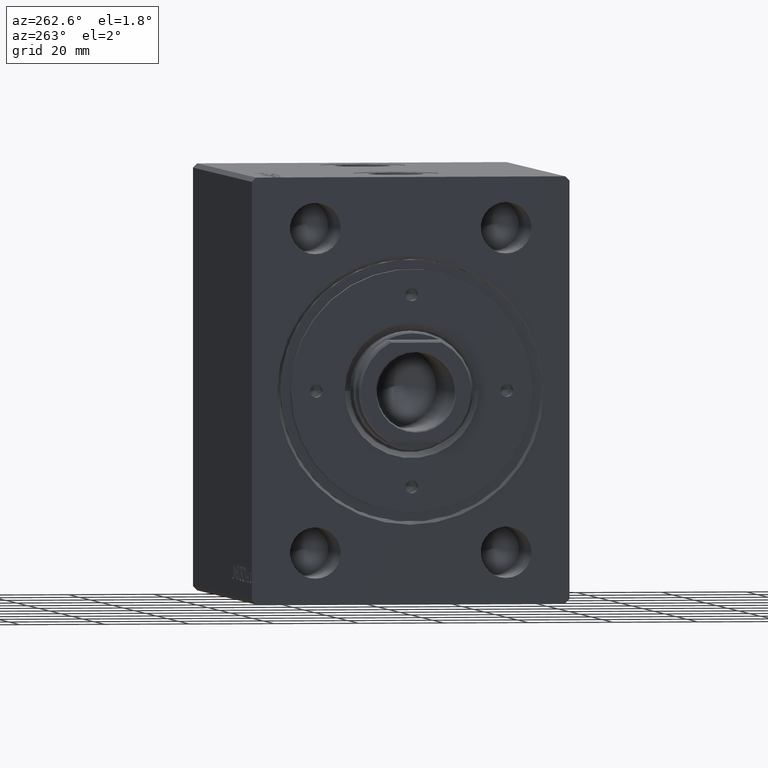
[diagram: clean part render]
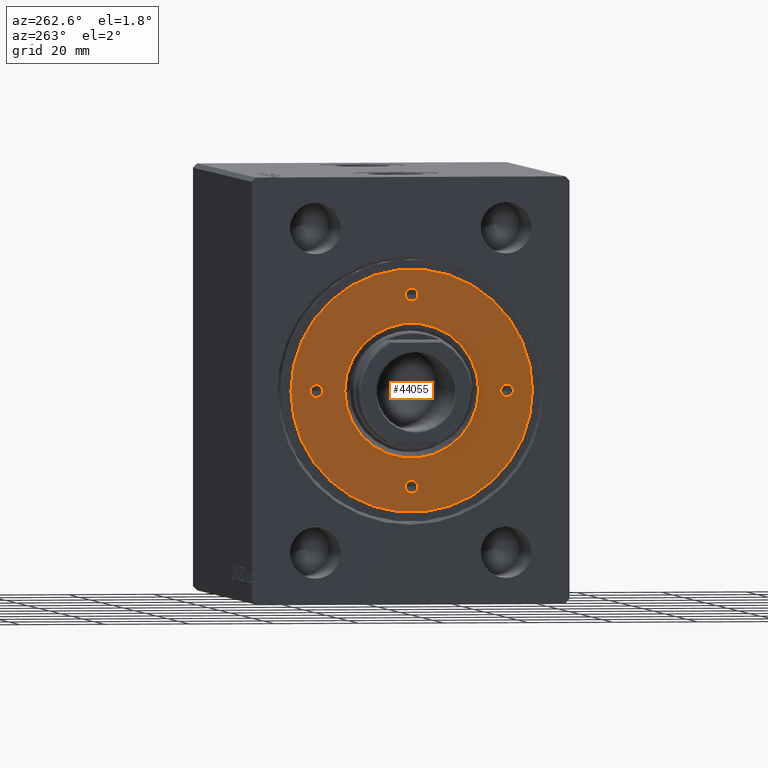
[diagram: same view with one face highlighted and labeled with its STEP entity id]
A machine part, auxiliary view. The second image highlights one B-rep face of the part: STEP entity #44055.
In plain terms, the highlighted planar face has unit normal (-1, 0, 0).
Its self-contained STEP definition (entity closure, byte-faithful):
#555 = EDGE_CURVE ( 'NONE', #11235, #14431, #16003, .T. ) ;
#647 = CARTESIAN_POINT ( 'NONE',  ( 23.99999999999999645, 0.000000000000000000, 83.79999999999999716 ) ) ;
#808 = EDGE_CURVE ( 'NONE', #16384, #5450, #28067, .T. ) ;
#857 = CARTESIAN_POINT ( 'NONE',  ( 0.000000000000000000, 22.50000000000000000, 83.79999999999999716 ) ) ;
#1093 = EDGE_CURVE ( 'NONE', #17696, #11221, #14573, .T. ) ;
#1209 = EDGE_CURVE ( 'NONE', #3067, #16761, #31643, .T. ) ;
#1656 = CARTESIAN_POINT ( 'NONE',  ( 0.000000000000000000, 0.000000000000000000, 83.79999999999999716 ) ) ;
#1737 = DIRECTION ( 'NONE',  ( 1.000000000000000000, 0.000000000000000000, 0.000000000000000000 ) ) ;
#2230 = CARTESIAN_POINT ( 'NONE',  ( -1.499999999999996891, -22.50000000000000000, 83.79999999999999716 ) ) ;
#2514 = DIRECTION ( 'NONE',  ( -0.000000000000000000, -0.000000000000000000, 1.000000000000000000 ) ) ;
#3067 = VERTEX_POINT ( 'NONE', #18801 ) ;
#3983 = DIRECTION ( 'NONE',  ( 1.000000000000000000, 0.000000000000000000, 0.000000000000000000 ) ) ;
#4140 = AXIS2_PLACEMENT_3D ( 'NONE', #7750, #31386, #1737 ) ;
#4485 = CIRCLE ( 'NONE', #38644, 1.499999999999996891 ) ;
#4776 = ORIENTED_EDGE ( 'NONE', *, *, #10481, .T. ) ;
#4844 = CARTESIAN_POINT ( 'NONE',  ( 28.50000000000000000, 3.490243377569956456E-15, 83.79999999999999716 ) ) ;
#4968 = VERTEX_POINT ( 'NONE', #37027 ) ;
#5349 = DIRECTION ( 'NONE',  ( 0.000000000000000000, 0.000000000000000000, 1.000000000000000000 ) ) ;
#5450 = VERTEX_POINT ( 'NONE', #4844 ) ;
#6047 = VERTEX_POINT ( 'NONE', #647 ) ;
#6581 = EDGE_CURVE ( 'NONE', #21827, #6047, #30391, .T. ) ;
#7750 = CARTESIAN_POINT ( 'NONE',  ( 0.000000000000000000, -22.50000000000000000, 83.79999999999999716 ) ) ;
#8462 = FACE_OUTER_BOUND ( 'NONE', #8876, .T. ) ;
#8876 = EDGE_LOOP ( 'NONE', ( #18167, #40537 ) ) ;
#8897 = DIRECTION ( 'NONE',  ( 1.000000000000000000, 0.000000000000000000, -0.000000000000000000 ) ) ;
#9083 = CIRCLE ( 'NONE', #20506, 1.499999999999997780 ) ;
#10294 = EDGE_CURVE ( 'NONE', #5450, #16384, #36065, .T. ) ;
#10481 = EDGE_CURVE ( 'NONE', #16761, #3067, #28960, .T. ) ;
#11221 = VERTEX_POINT ( 'NONE', #17521 ) ;
#11235 = VERTEX_POINT ( 'NONE', #31103 ) ;
#11241 = DIRECTION ( 'NONE',  ( -0.000000000000000000, -0.000000000000000000, 1.000000000000000000 ) ) ;
#11387 = DIRECTION ( 'NONE',  ( -0.000000000000000000, -0.000000000000000000, 1.000000000000000000 ) ) ;
#11708 = CIRCLE ( 'NONE', #36634, 1.499999999999996891 ) ;
#12460 = FACE_BOUND ( 'NONE', #20221, .T. ) ;
#13049 = EDGE_CURVE ( 'NONE', #19925, #4968, #37568, .T. ) ;
#13679 = CARTESIAN_POINT ( 'NONE',  ( -28.50000000000000000, 0.000000000000000000, 83.79999999999999716 ) ) ;
#14431 = VERTEX_POINT ( 'NONE', #38616 ) ;
#14503 = EDGE_CURVE ( 'NONE', #14431, #11235, #36904, .T. ) ;
#14573 = CIRCLE ( 'NONE', #19576, 1.499999999999996891 ) ;
#14935 = CARTESIAN_POINT ( 'NONE',  ( 0.000000000000000000, 0.000000000000000000, 83.79999999999999716 ) ) ;
#15694 = DIRECTION ( 'NONE',  ( 1.000000000000000000, 0.000000000000000000, 0.000000000000000000 ) ) ;
#16003 = CIRCLE ( 'NONE', #16718, 1.499999999999997780 ) ;
#16109 = DIRECTION ( 'NONE',  ( 1.000000000000000000, 0.000000000000000000, 0.000000000000000000 ) ) ;
#16384 = VERTEX_POINT ( 'NONE', #13679 ) ;
#16718 = AXIS2_PLACEMENT_3D ( 'NONE', #17748, #11241, #27955 ) ;
#16761 = VERTEX_POINT ( 'NONE', #31855 ) ;
#17450 = AXIS2_PLACEMENT_3D ( 'NONE', #18453, #18668, #41836 ) ;
#17521 = CARTESIAN_POINT ( 'NONE',  ( -1.499999999999996891, 22.50000000000000000, 83.79999999999999716 ) ) ;
#17576 = AXIS2_PLACEMENT_3D ( 'NONE', #38631, #21707, #31953 ) ;
#17696 = VERTEX_POINT ( 'NONE', #18472 ) ;
#17708 = AXIS2_PLACEMENT_3D ( 'NONE', #26116, #2514, #16109 ) ;
#17748 = CARTESIAN_POINT ( 'NONE',  ( -22.50000000000000000, 0.000000000000000000, 83.79999999999999716 ) ) ;
#17850 = ORIENTED_EDGE ( 'NONE', *, *, #13049, .F. ) ;
#18167 = ORIENTED_EDGE ( 'NONE', *, *, #808, .T. ) ;
#18453 = CARTESIAN_POINT ( 'NONE',  ( 0.000000000000000000, 0.000000000000000000, 83.79999999999999716 ) ) ;
#18472 = CARTESIAN_POINT ( 'NONE',  ( 1.499999999999996891, 22.50000000000000000, 83.79999999999999716 ) ) ;
#18668 = DIRECTION ( 'NONE',  ( -0.000000000000000000, -0.000000000000000000, -1.000000000000000000 ) ) ;
#18801 = CARTESIAN_POINT ( 'NONE',  ( -15.79999999999997407, 1.934941942652814473E-15, 83.79999999999999716 ) ) ;
#18857 = DIRECTION ( 'NONE',  ( -0.000000000000000000, -0.000000000000000000, 1.000000000000000000 ) ) ;
#19576 = AXIS2_PLACEMENT_3D ( 'NONE', #857, #20714, #3983 ) ;
#19925 = VERTEX_POINT ( 'NONE', #2230 ) ;
#19961 = CARTESIAN_POINT ( 'NONE',  ( 22.50000000000000000, 0.000000000000000000, 83.79999999999999716 ) ) ;
#20221 = EDGE_LOOP ( 'NONE', ( #40292, #27850 ) ) ;
#20506 = AXIS2_PLACEMENT_3D ( 'NONE', #19961, #23733, #33543 ) ;
#20714 = DIRECTION ( 'NONE',  ( -0.000000000000000000, -0.000000000000000000, 1.000000000000000000 ) ) ;
#21580 = ORIENTED_EDGE ( 'NONE', *, *, #14503, .F. ) ;
#21619 = DIRECTION ( 'NONE',  ( 1.000000000000000000, 0.000000000000000000, 0.000000000000000000 ) ) ;
#21653 = DIRECTION ( 'NONE',  ( 1.000000000000000000, 0.000000000000000000, 0.000000000000000000 ) ) ;
#21707 = DIRECTION ( 'NONE',  ( -0.000000000000000000, -0.000000000000000000, 1.000000000000000000 ) ) ;
#21827 = VERTEX_POINT ( 'NONE', #35163 ) ;
#21869 = CARTESIAN_POINT ( 'NONE',  ( 0.000000000000000000, 22.50000000000000000, 83.79999999999999716 ) ) ;
#22065 = PLANE ( 'NONE',  #32791 ) ;
#22373 = ORIENTED_EDGE ( 'NONE', *, *, #1209, .T. ) ;
#23031 = DIRECTION ( 'NONE',  ( -0.000000000000000000, -0.000000000000000000, -1.000000000000000000 ) ) ;
#23733 = DIRECTION ( 'NONE',  ( -0.000000000000000000, -0.000000000000000000, 1.000000000000000000 ) ) ;
#24610 = DIRECTION ( 'NONE',  ( 1.000000000000000000, 0.000000000000000000, 0.000000000000000000 ) ) ;
#24674 = AXIS2_PLACEMENT_3D ( 'NONE', #33058, #23031, #15694 ) ;
#25835 = FACE_BOUND ( 'NONE', #41442, .T. ) ;
#26016 = EDGE_CURVE ( 'NONE', #4968, #19925, #4485, .T. ) ;
#26116 = CARTESIAN_POINT ( 'NONE',  ( -22.50000000000000000, 0.000000000000000000, 83.79999999999999716 ) ) ;
#26821 = EDGE_LOOP ( 'NONE', ( #28836, #17850 ) ) ;
#27850 = ORIENTED_EDGE ( 'NONE', *, *, #33813, .F. ) ;
#27955 = DIRECTION ( 'NONE',  ( 1.000000000000000000, 0.000000000000000000, 0.000000000000000000 ) ) ;
#28067 = CIRCLE ( 'NONE', #36658, 28.50000000000000000 ) ;
#28212 = AXIS2_PLACEMENT_3D ( 'NONE', #1656, #41334, #24610 ) ;
#28725 = FACE_BOUND ( 'NONE', #33121, .T. ) ;
#28836 = ORIENTED_EDGE ( 'NONE', *, *, #26016, .F. ) ;
#28939 = ORIENTED_EDGE ( 'NONE', *, *, #555, .F. ) ;
#28960 = CIRCLE ( 'NONE', #24674, 15.79999999999997407 ) ;
#30391 = CIRCLE ( 'NONE', #17576, 1.499999999999997780 ) ;
#30967 = ORIENTED_EDGE ( 'NONE', *, *, #6581, .F. ) ;
#31103 = CARTESIAN_POINT ( 'NONE',  ( -21.00000000000000000, 0.000000000000000000, 83.79999999999999716 ) ) ;
#31386 = DIRECTION ( 'NONE',  ( -0.000000000000000000, -0.000000000000000000, 1.000000000000000000 ) ) ;
#31643 = CIRCLE ( 'NONE', #17450, 15.79999999999997407 ) ;
#31855 = CARTESIAN_POINT ( 'NONE',  ( 15.79999999999997407, 0.000000000000000000, 83.79999999999999716 ) ) ;
#31953 = DIRECTION ( 'NONE',  ( 1.000000000000000000, 0.000000000000000000, 0.000000000000000000 ) ) ;
#32612 = EDGE_CURVE ( 'NONE', #6047, #21827, #9083, .T. ) ;
#32659 = DIRECTION ( 'NONE',  ( 1.000000000000000000, 0.000000000000000000, 0.000000000000000000 ) ) ;
#32791 = AXIS2_PLACEMENT_3D ( 'NONE', #39204, #5349, #8897 ) ;
#33058 = CARTESIAN_POINT ( 'NONE',  ( 0.000000000000000000, 0.000000000000000000, 83.79999999999999716 ) ) ;
#33121 = EDGE_LOOP ( 'NONE', ( #4776, #22373 ) ) ;
#33436 = ORIENTED_EDGE ( 'NONE', *, *, #32612, .F. ) ;
#33543 = DIRECTION ( 'NONE',  ( 1.000000000000000000, 0.000000000000000000, 0.000000000000000000 ) ) ;
#33550 = EDGE_LOOP ( 'NONE', ( #33436, #30967 ) ) ;
#33813 = EDGE_CURVE ( 'NONE', #11221, #17696, #11708, .T. ) ;
#35163 = CARTESIAN_POINT ( 'NONE',  ( 21.00000000000000000, 1.836970198721027222E-16, 83.79999999999999716 ) ) ;
#36065 = CIRCLE ( 'NONE', #28212, 28.50000000000000000 ) ;
#36634 = AXIS2_PLACEMENT_3D ( 'NONE', #21869, #11387, #21653 ) ;
#36658 = AXIS2_PLACEMENT_3D ( 'NONE', #14935, #42774, #21619 ) ;
#36904 = CIRCLE ( 'NONE', #17708, 1.499999999999997780 ) ;
#37027 = CARTESIAN_POINT ( 'NONE',  ( 1.499999999999996891, -22.50000000000000000, 83.79999999999999716 ) ) ;
#37568 = CIRCLE ( 'NONE', #4140, 1.499999999999996891 ) ;
#38616 = CARTESIAN_POINT ( 'NONE',  ( -23.99999999999999645, 1.836970198721027222E-16, 83.79999999999999716 ) ) ;
#38631 = CARTESIAN_POINT ( 'NONE',  ( 22.50000000000000000, 0.000000000000000000, 83.79999999999999716 ) ) ;
#38644 = AXIS2_PLACEMENT_3D ( 'NONE', #38892, #18857, #32659 ) ;
#38892 = CARTESIAN_POINT ( 'NONE',  ( 0.000000000000000000, -22.50000000000000000, 83.79999999999999716 ) ) ;
#39204 = CARTESIAN_POINT ( 'NONE',  ( 0.000000000000000000, 0.000000000000000000, 83.79999999999999716 ) ) ;
#39425 = FACE_BOUND ( 'NONE', #26821, .T. ) ;
#40292 = ORIENTED_EDGE ( 'NONE', *, *, #1093, .F. ) ;
#40537 = ORIENTED_EDGE ( 'NONE', *, *, #10294, .T. ) ;
#41334 = DIRECTION ( 'NONE',  ( 0.000000000000000000, 0.000000000000000000, 1.000000000000000000 ) ) ;
#41442 = EDGE_LOOP ( 'NONE', ( #28939, #21580 ) ) ;
#41836 = DIRECTION ( 'NONE',  ( 1.000000000000000000, 0.000000000000000000, 0.000000000000000000 ) ) ;
#42774 = DIRECTION ( 'NONE',  ( 0.000000000000000000, 0.000000000000000000, 1.000000000000000000 ) ) ;
#42777 = FACE_BOUND ( 'NONE', #33550, .T. ) ;
#44055 = ADVANCED_FACE ( 'NONE', ( #25835, #12460, #42777, #39425, #28725, #8462 ), #22065, .T. ) ;